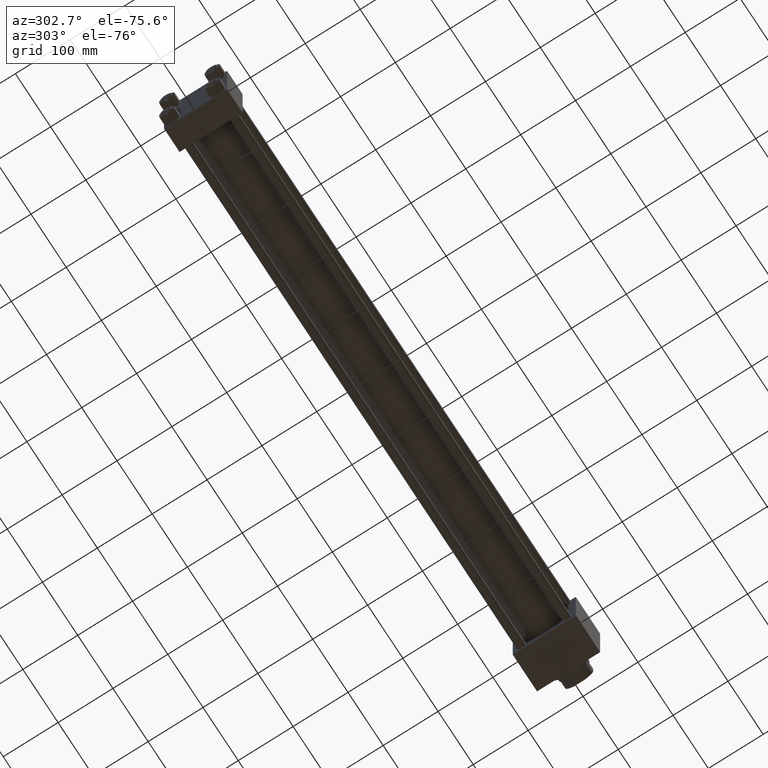
[diagram: clean part render]
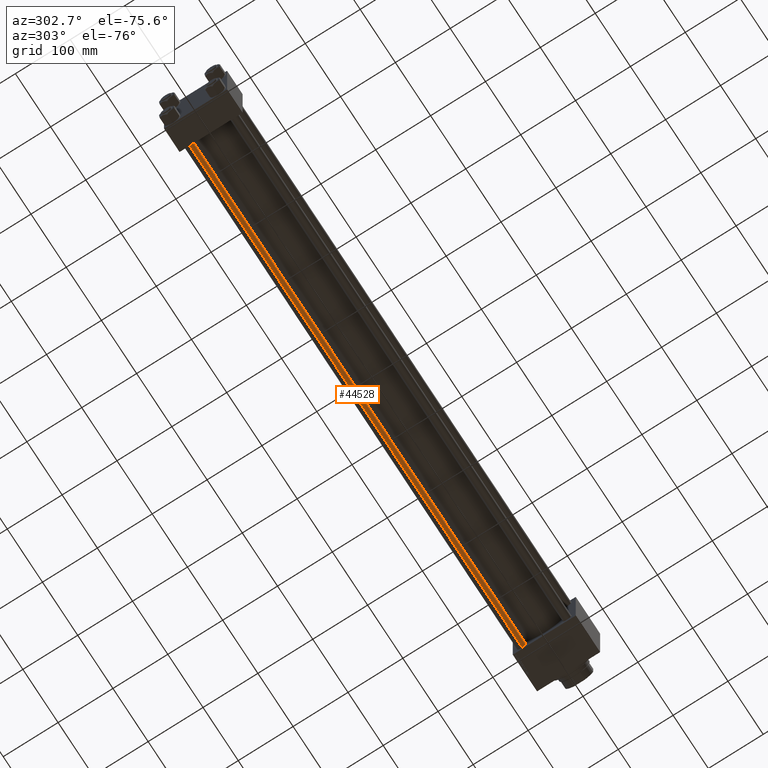
[diagram: same view with one face highlighted and labeled with its STEP entity id]
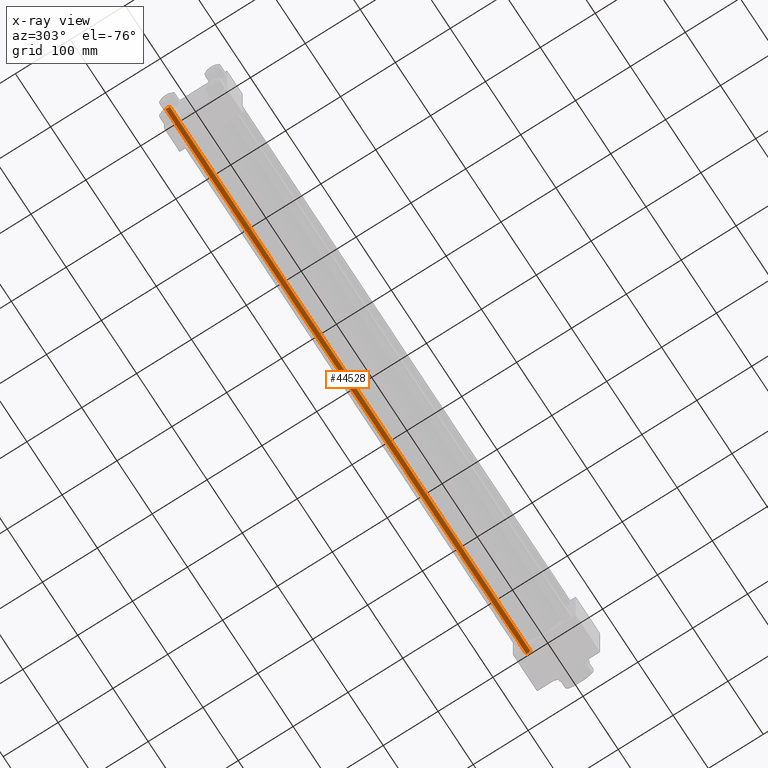
[diagram: x-ray of the same camera — body ghosted, the highlighted face saturated]
A machine part, auxiliary view. The second image highlights one B-rep face of the part: STEP entity #44528.
The next image is the same camera in x-ray: the body ghosted, the highlighted face saturated — about 0% of this face is hidden behind the body in this view.
In plain terms, the highlighted cylindrical surface (edge-blend (fillet) strip) has radius 8 mm, axis along (1, -0, 0).
Its self-contained STEP definition (entity closure, byte-faithful):
#1181 = VECTOR ( 'NONE', #20722, 1000.000000000000000 ) ;
#1258 = CARTESIAN_POINT ( 'NONE',  ( 0.000000000000000000, 0.000000000000000000, 0.5000000000001669775 ) ) ;
#3297 = ORIENTED_EDGE ( 'NONE', *, *, #20046, .F. ) ;
#4885 = VERTEX_POINT ( 'NONE', #15545 ) ;
#5193 = FACE_OUTER_BOUND ( 'NONE', #47799, .T. ) ;
#7338 = CARTESIAN_POINT ( 'NONE',  ( 8.000000000000000000, 9.797174393178825657E-16, 0.5000000000001669775 ) ) ;
#9114 = CARTESIAN_POINT ( 'NONE',  ( 8.000000000000000000, 9.797174393178825657E-16, 1022.499999999999773 ) ) ;
#11546 = CARTESIAN_POINT ( 'NONE',  ( -8.000000000000000000, 0.000000000000000000, 0.5000000000001669775 ) ) ;
#12037 = EDGE_CURVE ( 'NONE', #14427, #19692, #18091, .T. ) ;
#12163 = AXIS2_PLACEMENT_3D ( 'NONE', #38533, #30858, #50096 ) ;
#12665 = ORIENTED_EDGE ( 'NONE', *, *, #45394, .T. ) ;
#13031 = DIRECTION ( 'NONE',  ( -0.000000000000000000, -0.000000000000000000, 1.000000000000000000 ) ) ;
#13101 = ORIENTED_EDGE ( 'NONE', *, *, #12037, .T. ) ;
#14427 = VERTEX_POINT ( 'NONE', #11546 ) ;
#15545 = CARTESIAN_POINT ( 'NONE',  ( -8.000000000000000000, 0.000000000000000000, 1022.499999999999773 ) ) ;
#17897 = CARTESIAN_POINT ( 'NONE',  ( 8.000000000000000000, 9.797174393178825657E-16, 1022.999999999999886 ) ) ;
#18091 = CIRCLE ( 'NONE', #45918, 8.000000000000000000 ) ;
#18987 = DIRECTION ( 'NONE',  ( -1.000000000000000000, 0.000000000000000000, 0.000000000000000000 ) ) ;
#19692 = VERTEX_POINT ( 'NONE', #7338 ) ;
#20046 = EDGE_CURVE ( 'NONE', #22486, #19692, #37344, .T. ) ;
#20722 = DIRECTION ( 'NONE',  ( -0.000000000000000000, -0.000000000000000000, -1.000000000000000000 ) ) ;
#20781 = CYLINDRICAL_SURFACE ( 'NONE', #25225, 8.000000000000000000 ) ;
#22486 = VERTEX_POINT ( 'NONE', #9114 ) ;
#25225 = AXIS2_PLACEMENT_3D ( 'NONE', #36395, #34073, #18987 ) ;
#25782 = CARTESIAN_POINT ( 'NONE',  ( -8.000000000000000000, 0.000000000000000000, 1022.999999999999886 ) ) ;
#28521 = VECTOR ( 'NONE', #37049, 1000.000000000000000 ) ;
#29372 = LINE ( 'NONE', #25782, #28521 ) ;
#30858 = DIRECTION ( 'NONE',  ( 0.000000000000000000, 0.000000000000000000, -1.000000000000000000 ) ) ;
#34073 = DIRECTION ( 'NONE',  ( -0.000000000000000000, -0.000000000000000000, -1.000000000000000000 ) ) ;
#36395 = CARTESIAN_POINT ( 'NONE',  ( 0.000000000000000000, 0.000000000000000000, 1022.999999999999886 ) ) ;
#37049 = DIRECTION ( 'NONE',  ( -0.000000000000000000, -0.000000000000000000, -1.000000000000000000 ) ) ;
#37344 = LINE ( 'NONE', #17897, #1181 ) ;
#38533 = CARTESIAN_POINT ( 'NONE',  ( 0.000000000000000000, 0.000000000000000000, 1022.499999999999773 ) ) ;
#39960 = CIRCLE ( 'NONE', #12163, 8.000000000000000000 ) ;
#41072 = ORIENTED_EDGE ( 'NONE', *, *, #45115, .T. ) ;
#44528 = ADVANCED_FACE ( 'NONE', ( #5193 ), #20781, .T. ) ;
#45115 = EDGE_CURVE ( 'NONE', #22486, #4885, #39960, .T. ) ;
#45394 = EDGE_CURVE ( 'NONE', #4885, #14427, #29372, .T. ) ;
#45918 = AXIS2_PLACEMENT_3D ( 'NONE', #1258, #13031, #48364 ) ;
#47799 = EDGE_LOOP ( 'NONE', ( #3297, #41072, #12665, #13101 ) ) ;
#48364 = DIRECTION ( 'NONE',  ( 1.000000000000000000, 0.000000000000000000, 0.000000000000000000 ) ) ;
#50096 = DIRECTION ( 'NONE',  ( 1.000000000000000000, 0.000000000000000000, 0.000000000000000000 ) ) ;